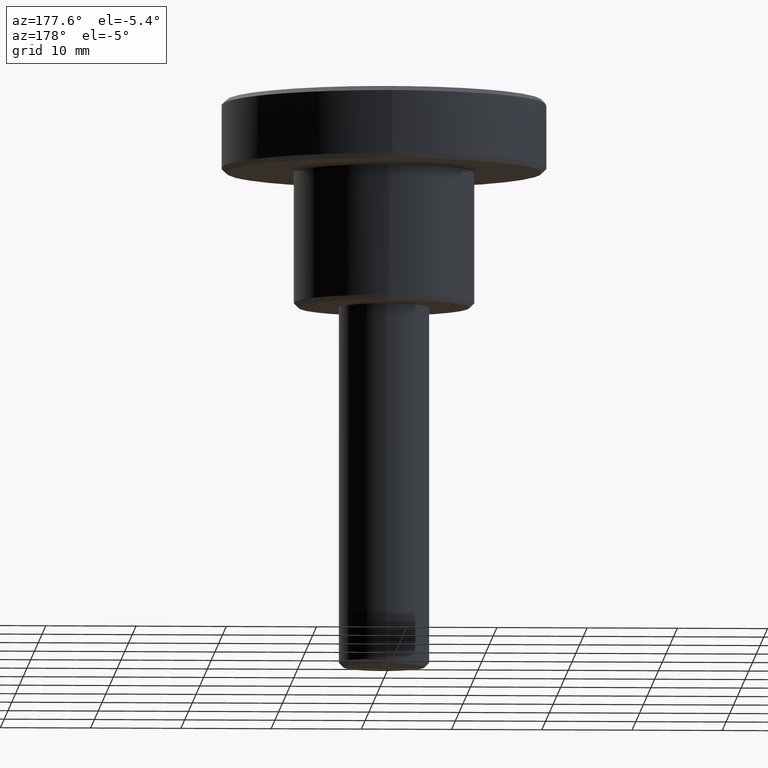
[diagram: clean part render]
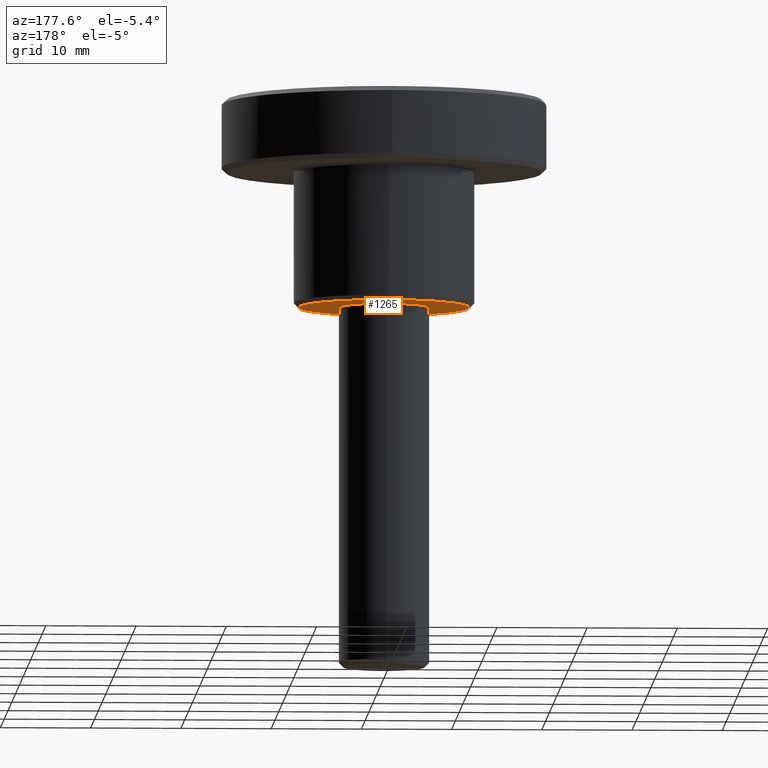
[diagram: same view with one face highlighted and labeled with its STEP entity id]
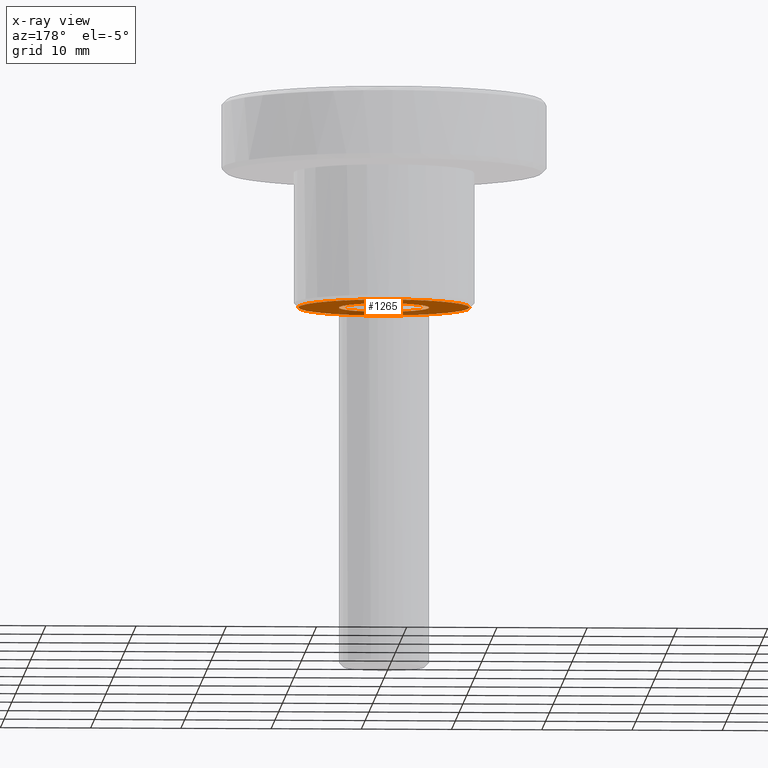
[diagram: x-ray of the same camera — body ghosted, the highlighted face saturated]
A machine part, auxiliary view. The second image highlights one B-rep face of the part: STEP entity #1265.
The next image is the same camera in x-ray: the body ghosted, the highlighted face saturated — about 20% of this face is hidden behind the body in this view.
In plain terms, the highlighted face is a freeform B-spline surface patch.
Its self-contained STEP definition (entity closure, byte-faithful):
#718=CARTESIAN_POINT('',(-3.840046603939930,-8.689306190925844,4.884049E-012));
#719=VERTEX_POINT('',#718);
#725=CARTESIAN_POINT('',(9.500000000000000,0.0,0.0));
#726=VERTEX_POINT('',#725);
#727=CARTESIAN_POINT('',(9.500000000000000,0.0,0.0));
#728=CARTESIAN_POINT('',(9.500000000000000,-9.500000000000000,0.0));
#729=CARTESIAN_POINT('',(0.0,-9.500000000000000,0.0));
#730=CARTESIAN_POINT('',(-2.005598363953585,-9.500000000000000,0.0));
#731=CARTESIAN_POINT('',(-3.840046603939931,-8.689306190925844,4.884049E-012));
#739=(BOUNDED_CURVE()B_SPLINE_CURVE(2,(#727,#728,#729,#730,#731),.UNSPECIFIED.,.F.,.U.)B_SPLINE_CURVE_WITH_KNOTS((3,2,3),(0.500000000000000,0.750000000000000,0.818638421541977),.UNSPECIFIED.)CURVE()GEOMETRIC_REPRESENTATION_ITEM()RATIONAL_B_SPLINE_CURVE((1.0,0.707106781186548,1.0,0.919585087121183,0.883326595749867))REPRESENTATION_ITEM(''));
#740=EDGE_CURVE('',#726,#719,#739,.T.);
#742=CARTESIAN_POINT('',(-0.082902087236695,9.499638269109902,2.931058E-013));
#743=VERTEX_POINT('',#742);
#744=CARTESIAN_POINT('',(-0.082902087236695,9.499638269109902,2.931058E-013));
#745=CARTESIAN_POINT('',(-0.041451832798805,9.500000000000000,0.0));
#746=CARTESIAN_POINT('',(0.0,9.500000000000000,0.0));
#747=CARTESIAN_POINT('',(9.500000000000000,9.500000000000000,0.0));
#748=CARTESIAN_POINT('',(9.500000000000000,0.0,0.0));
#756=(BOUNDED_CURVE()B_SPLINE_CURVE(2,(#744,#745,#746,#747,#748),.UNSPECIFIED.,.F.,.U.)B_SPLINE_CURVE_WITH_KNOTS((3,2,3),(0.248460105664934,0.250000000000000,0.500000000000000),.UNSPECIFIED.)CURVE()GEOMETRIC_REPRESENTATION_ITEM()RATIONAL_B_SPLINE_CURVE((0.996414028100222,0.998195901566279,1.0,0.707106781186548,1.0))REPRESENTATION_ITEM(''));
#757=EDGE_CURVE('',#743,#726,#756,.T.);
#846=CARTESIAN_POINT('',(-9.500000000000000,0.0,0.0));
#847=VERTEX_POINT('',#846);
#848=CARTESIAN_POINT('',(-9.500000000000000,0.0,0.0));
#849=CARTESIAN_POINT('',(-9.500000000000000,9.417456500648044,0.0));
#850=CARTESIAN_POINT('',(-0.082902087236695,9.499638269109902,2.931058E-013));
#858=(BOUNDED_CURVE()B_SPLINE_CURVE(2,(#848,#849,#850),.UNSPECIFIED.,.F.,.U.)B_SPLINE_CURVE_WITH_KNOTS((3,3),(0.0,0.248460105664933),.UNSPECIFIED.)CURVE()GEOMETRIC_REPRESENTATION_ITEM()RATIONAL_B_SPLINE_CURVE((1.0,0.708910879620269,0.996414028100222))REPRESENTATION_ITEM(''));
#859=EDGE_CURVE('',#847,#743,#858,.T.);
#861=CARTESIAN_POINT('',(-3.840046603939930,-8.689306190925844,4.884049E-012));
#862=CARTESIAN_POINT('',(-9.500000000000000,-6.188015024537688,0.0));
#863=CARTESIAN_POINT('',(-9.500000000000000,0.0,0.0));
#871=(BOUNDED_CURVE()B_SPLINE_CURVE(2,(#861,#862,#863),.UNSPECIFIED.,.F.,.U.)B_SPLINE_CURVE_WITH_KNOTS((3,3),(0.818638421541977,1.0),.UNSPECIFIED.)CURVE()GEOMETRIC_REPRESENTATION_ITEM()RATIONAL_B_SPLINE_CURVE((0.883326595749867,0.787521694065364,1.0))REPRESENTATION_ITEM(''));
#872=EDGE_CURVE('',#719,#847,#871,.T.);
#898=CARTESIAN_POINT('',(-0.043632677557229,4.999809615320285,9.436896E-016));
#899=VERTEX_POINT('',#898);
#905=CARTESIAN_POINT('',(5.0,0.0,0.0));
#906=VERTEX_POINT('',#905);
#907=CARTESIAN_POINT('',(-0.043632677557229,4.999809615320285,9.436896E-016));
#908=CARTESIAN_POINT('',(-0.021816754168871,5.0,0.0));
#909=CARTESIAN_POINT('',(0.0,5.0,0.0));
#910=CARTESIAN_POINT('',(5.000000000000001,5.000000000000001,0.0));
#911=CARTESIAN_POINT('',(5.0,0.0,0.0));
#919=(BOUNDED_CURVE()B_SPLINE_CURVE(2,(#907,#908,#909,#910,#911),.UNSPECIFIED.,.F.,.U.)B_SPLINE_CURVE_WITH_KNOTS((3,2,3),(0.248460105660408,0.250000000000000,0.500000000000000),.UNSPECIFIED.)CURVE()GEOMETRIC_REPRESENTATION_ITEM()RATIONAL_B_SPLINE_CURVE((0.996414028089748,0.998195901560977,1.0,0.707106781186548,1.0))REPRESENTATION_ITEM(''));
#920=EDGE_CURVE('',#899,#906,#919,.T.);
#922=CARTESIAN_POINT('',(0.620640010418619,-4.961331069125258,9.281966E-016));
#923=VERTEX_POINT('',#922);
#924=CARTESIAN_POINT('',(5.0,0.0,0.0));
#925=CARTESIAN_POINT('',(5.000000000000002,-4.413493000716219,0.0));
#926=CARTESIAN_POINT('',(0.620640010418619,-4.961331069125258,9.281966E-016));
#934=(BOUNDED_CURVE()B_SPLINE_CURVE(2,(#924,#925,#926),.UNSPECIFIED.,.F.,.U.)B_SPLINE_CURVE_WITH_KNOTS((3,3),(0.500000000000000,0.728526071027975),.UNSPECIFIED.)CURVE()GEOMETRIC_REPRESENTATION_ITEM()RATIONAL_B_SPLINE_CURVE((1.0,0.732265053895299,0.954005430272149))REPRESENTATION_ITEM(''));
#935=EDGE_CURVE('',#906,#923,#934,.T.);
#970=CARTESIAN_POINT('',(-5.0,0.0,0.0));
#971=VERTEX_POINT('',#970);
#972=CARTESIAN_POINT('',(0.620640010418619,-4.961331069125259,9.281966E-016));
#973=CARTESIAN_POINT('',(0.311524637687172,-5.0,0.0));
#974=CARTESIAN_POINT('',(0.0,-5.0,0.0));
#975=CARTESIAN_POINT('',(-5.000000000000001,-5.000000000000001,0.0));
#976=CARTESIAN_POINT('',(-5.0,0.0,0.0));
#984=(BOUNDED_CURVE()B_SPLINE_CURVE(2,(#972,#973,#974,#975,#976),.UNSPECIFIED.,.F.,.U.)B_SPLINE_CURVE_WITH_KNOTS((3,2,3),(0.728526071027975,0.750000000000000,1.0),.UNSPECIFIED.)CURVE()GEOMETRIC_REPRESENTATION_ITEM()RATIONAL_B_SPLINE_CURVE((0.954005430272150,0.974841727291249,1.0,0.707106781186548,1.0))REPRESENTATION_ITEM(''));
#985=EDGE_CURVE('',#923,#971,#984,.T.);
#987=CARTESIAN_POINT('',(-5.0,0.0,0.0));
#988=CARTESIAN_POINT('',(-5.0,4.956556052845294,0.0));
#989=CARTESIAN_POINT('',(-0.043632677557229,4.999809615320285,9.436896E-016));
#997=(BOUNDED_CURVE()B_SPLINE_CURVE(2,(#987,#988,#989),.UNSPECIFIED.,.F.,.U.)B_SPLINE_CURVE_WITH_KNOTS((3,3),(0.0,0.248460105660408),.UNSPECIFIED.)CURVE()GEOMETRIC_REPRESENTATION_ITEM()RATIONAL_B_SPLINE_CURVE((1.0,0.708910879625571,0.996414028089748))REPRESENTATION_ITEM(''));
#998=EDGE_CURVE('',#971,#899,#997,.T.);
#1248=CARTESIAN_POINT('',(-10.449049963174311,10.448587236552500,0.0));
#1249=CARTESIAN_POINT('',(10.449050472794029,10.448587236552500,0.0));
#1250=CARTESIAN_POINT('',(-10.449049963174311,-10.447280231862329,0.0));
#1251=CARTESIAN_POINT('',(10.449050472794029,-10.447280231862329,0.0));
#1252=B_SPLINE_SURFACE_WITH_KNOTS('',1,1,((#1248,#1250),(#1249,#1251)),.UNSPECIFIED.,.F.,.F.,.U.,(2,2),(2,2),(0.0,20.898100435968342),(0.0,20.895867468414831),.UNSPECIFIED.);
#1253=ORIENTED_EDGE('',*,*,#859,.T.);
#1254=ORIENTED_EDGE('',*,*,#757,.T.);
#1255=ORIENTED_EDGE('',*,*,#740,.T.);
#1256=ORIENTED_EDGE('',*,*,#872,.T.);
#1257=EDGE_LOOP('',(#1253,#1254,#1255,#1256));
#1258=FACE_OUTER_BOUND('',#1257,.T.);
#1259=ORIENTED_EDGE('',*,*,#998,.F.);
#1260=ORIENTED_EDGE('',*,*,#985,.F.);
#1261=ORIENTED_EDGE('',*,*,#935,.F.);
#1262=ORIENTED_EDGE('',*,*,#920,.F.);
#1263=EDGE_LOOP('',(#1259,#1260,#1261,#1262));
#1264=FACE_BOUND('',#1263,.T.);
#1265=ADVANCED_FACE('',(#1258,#1264),#1252,.T.);